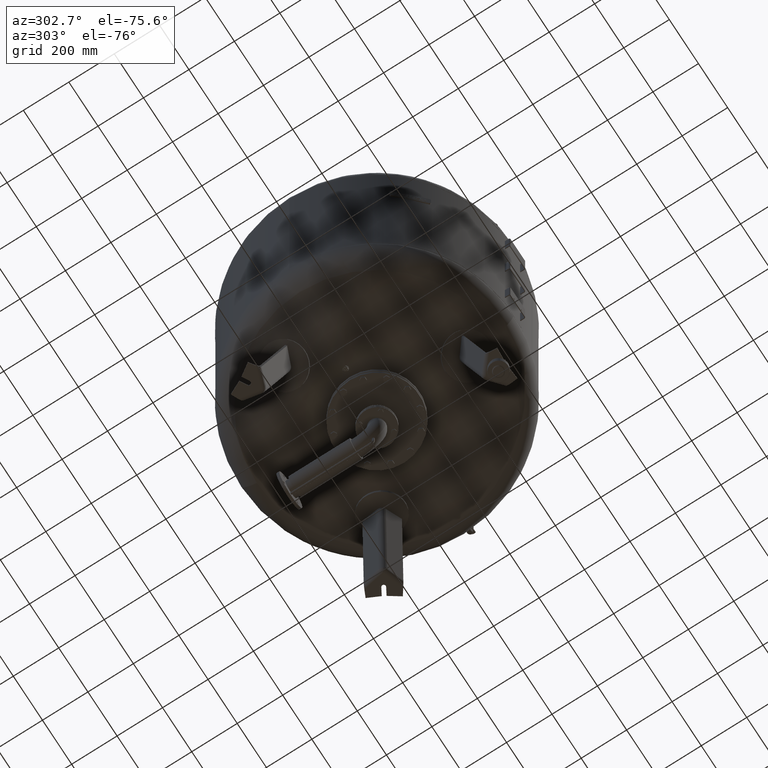
[diagram: clean part render]
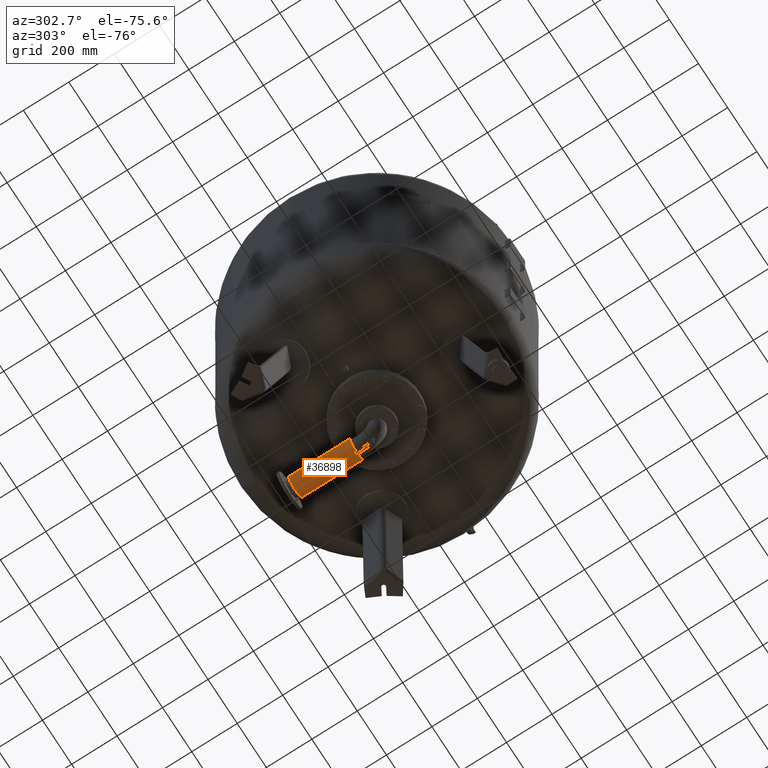
[diagram: same view with one face highlighted and labeled with its STEP entity id]
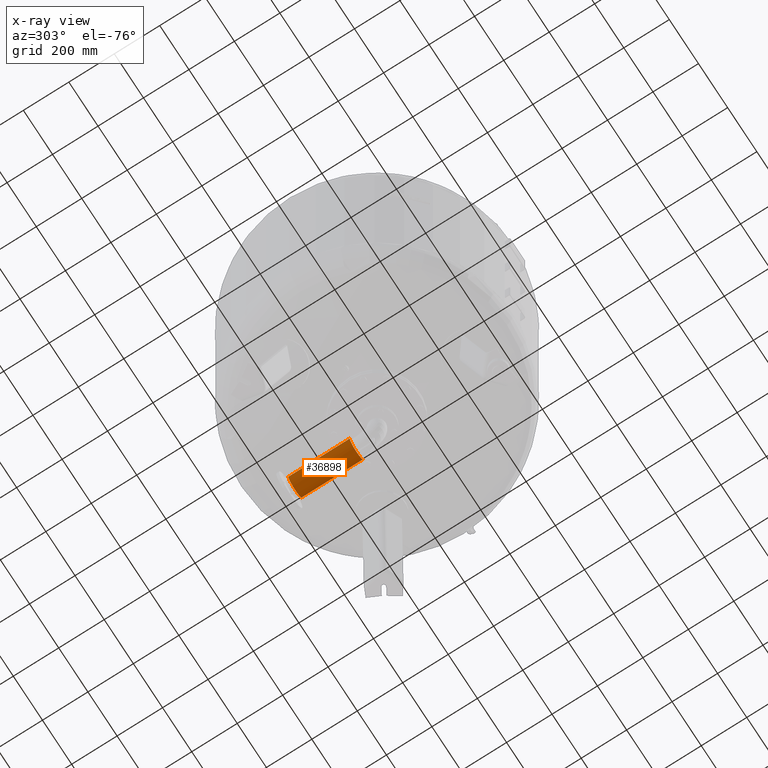
[diagram: x-ray of the same camera — body ghosted, the highlighted face saturated]
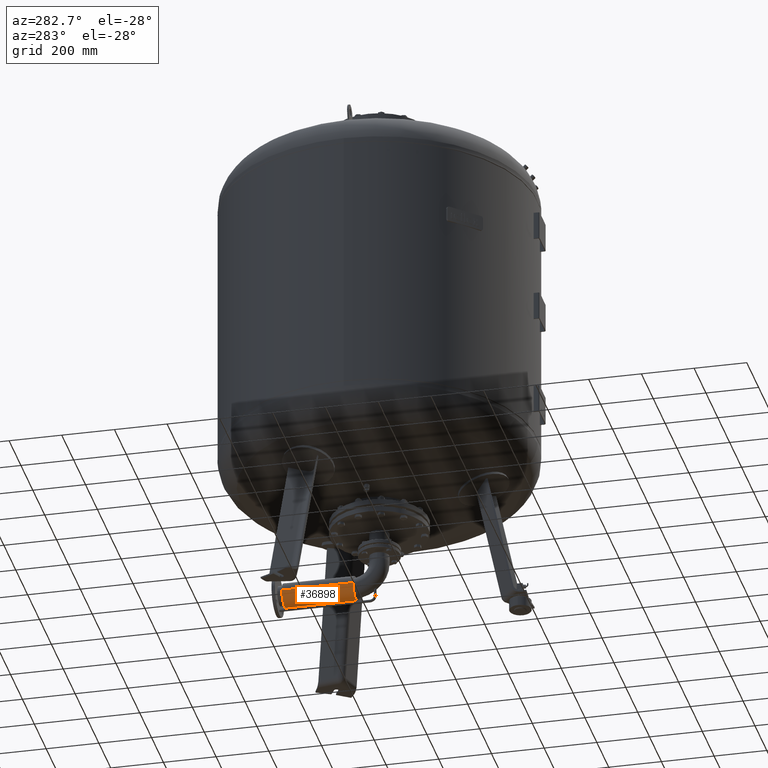
[diagram: same view with one face highlighted and labeled with its STEP entity id]
A machine part, auxiliary view. The second image highlights one B-rep face of the part: STEP entity #36898.
The next image is the same camera in x-ray: the body ghosted, the highlighted face saturated — about 0% of this face is hidden behind the body in this view.
A second angle (auxiliary view) of the same face is appended — the face is thin or edge-on in the first view.
In plain terms, the highlighted cylindrical surface (edge-blend (fillet) strip) has radius 46.05 mm, axis along (0, 1, 0).
Its self-contained STEP definition (entity closure, byte-faithful):
#36857=CARTESIAN_POINT('',(-1.359358E-014,90.0,168.0));
#36858=DIRECTION('',(0.0,1.0,0.0));
#36859=DIRECTION('',(-1.0,0.0,0.0));
#36860=AXIS2_PLACEMENT_3D('',#36857,#36858,#36859);
#36861=CYLINDRICAL_SURFACE('',#36860,46.049999999999997);
#36862=CARTESIAN_POINT('',(-46.050000000000011,360.0,168.0));
#36863=VERTEX_POINT('',#36862);
#36864=CARTESIAN_POINT('',(-46.050000000000011,90.0,168.0));
#36865=VERTEX_POINT('',#36864);
#36866=CARTESIAN_POINT('',(-46.050000000000011,360.0,168.0));
#36867=DIRECTION('',(0.0,-1.0,0.0));
#36868=VECTOR('',#36867,270.0);
#36869=LINE('',#36866,#36868);
#36870=EDGE_CURVE('',#36863,#36865,#36869,.T.);
#36871=ORIENTED_EDGE('',*,*,#36870,.F.);
#36872=CARTESIAN_POINT('',(46.049999999999983,360.0,168.0));
#36873=VERTEX_POINT('',#36872);
#36874=CARTESIAN_POINT('',(-1.359358E-014,360.0,168.0));
#36875=DIRECTION('',(0.0,-1.0,0.0));
#36876=DIRECTION('',(-1.0,0.0,0.0));
#36877=AXIS2_PLACEMENT_3D('',#36874,#36875,#36876);
#36878=CIRCLE('',#36877,46.049999999999997);
#36879=EDGE_CURVE('',#36863,#36873,#36878,.T.);
#36880=ORIENTED_EDGE('',*,*,#36879,.T.);
#36881=CARTESIAN_POINT('',(46.049999999999983,90.0,168.0));
#36882=VERTEX_POINT('',#36881);
#36883=CARTESIAN_POINT('',(46.049999999999983,360.0,168.0));
#36884=DIRECTION('',(0.0,-1.0,0.0));
#36885=VECTOR('',#36884,270.0);
#36886=LINE('',#36883,#36885);
#36887=EDGE_CURVE('',#36873,#36882,#36886,.T.);
#36888=ORIENTED_EDGE('',*,*,#36887,.T.);
#36889=CARTESIAN_POINT('',(-1.359358E-014,90.0,168.0));
#36890=DIRECTION('',(0.0,-1.0,0.0));
#36891=DIRECTION('',(-1.0,0.0,0.0));
#36892=AXIS2_PLACEMENT_3D('',#36889,#36890,#36891);
#36893=CIRCLE('',#36892,46.049999999999997);
#36894=EDGE_CURVE('',#36865,#36882,#36893,.T.);
#36895=ORIENTED_EDGE('',*,*,#36894,.F.);
#36896=EDGE_LOOP('',(#36871,#36880,#36888,#36895));
#36897=FACE_OUTER_BOUND('',#36896,.T.);
#36898=ADVANCED_FACE('',(#36897),#36861,.T.);